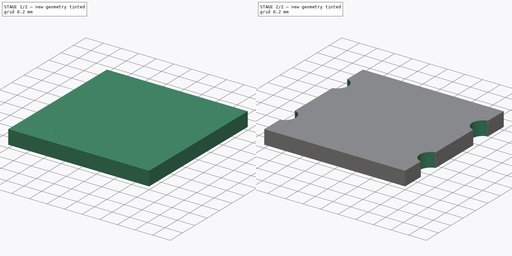
[diagram: build sequence overview — one tinted view per stage of 2, left to right]
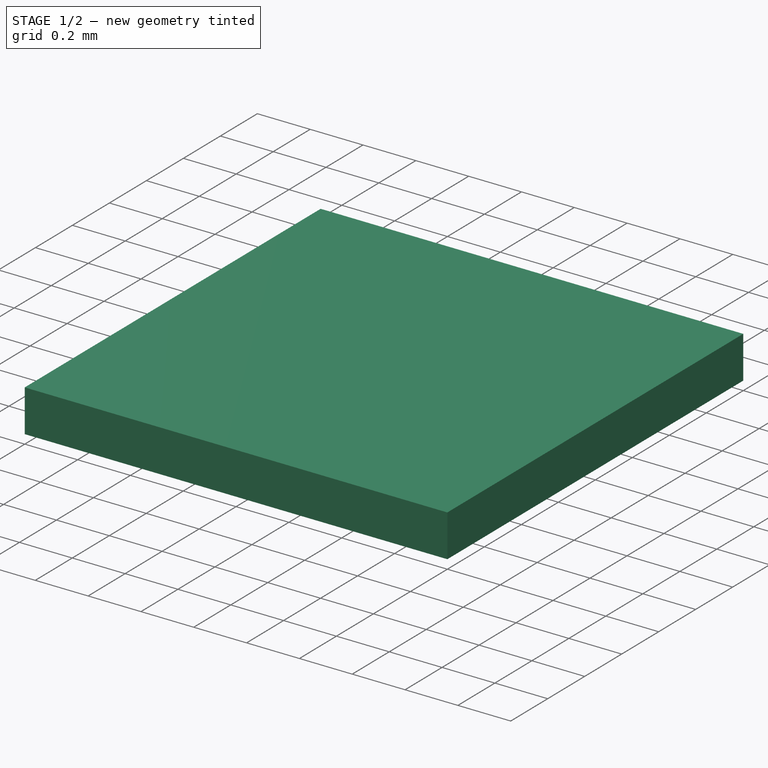
[diagram: stage 1 of 2 — iso view after this stage's code; geometry added in this stage tinted green]
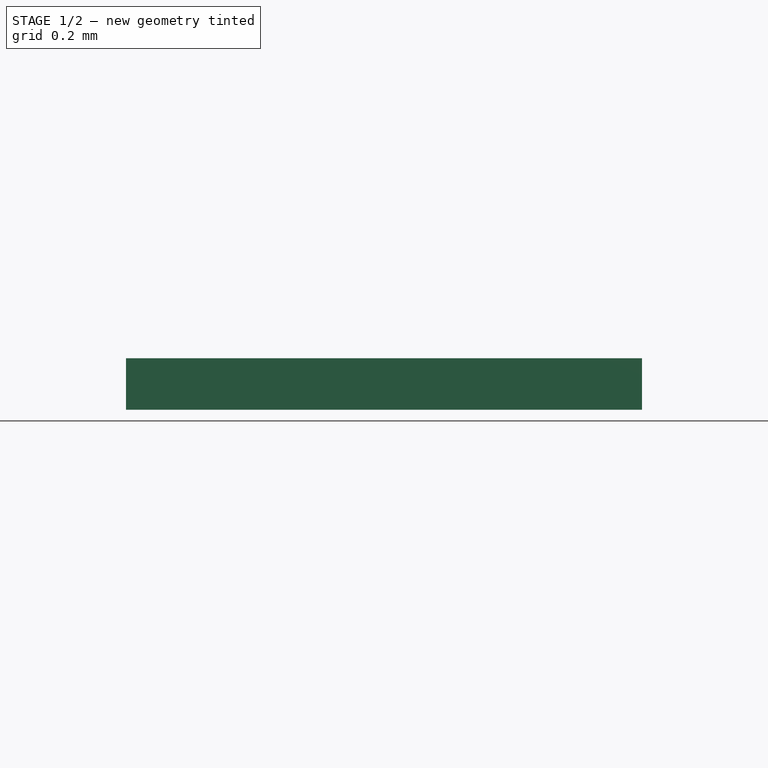
[diagram: stage 1 of 2 — front view after this stage's code; geometry added in this stage tinted green]
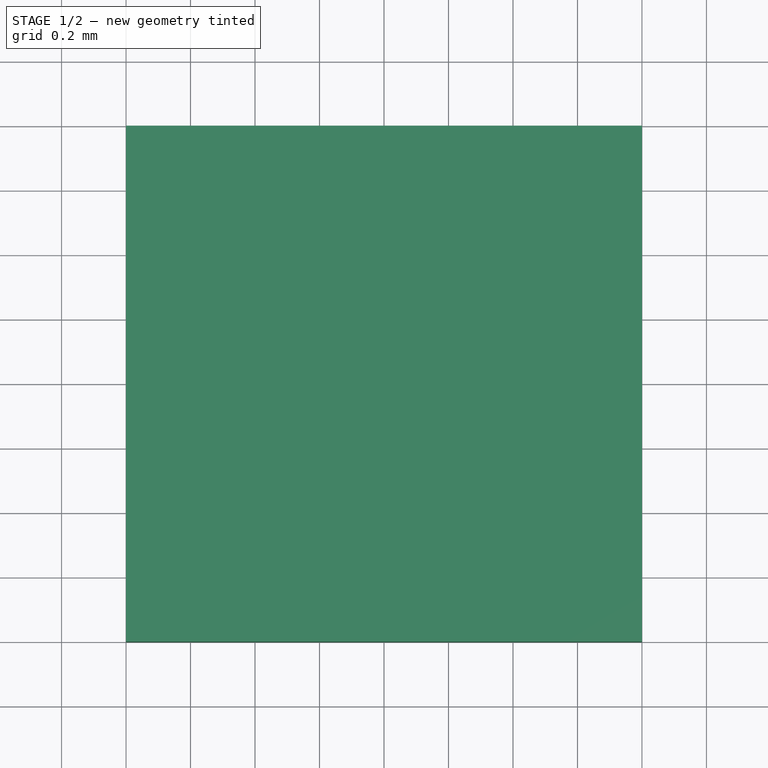
[diagram: stage 1 of 2 — top view after this stage's code; geometry added in this stage tinted green]
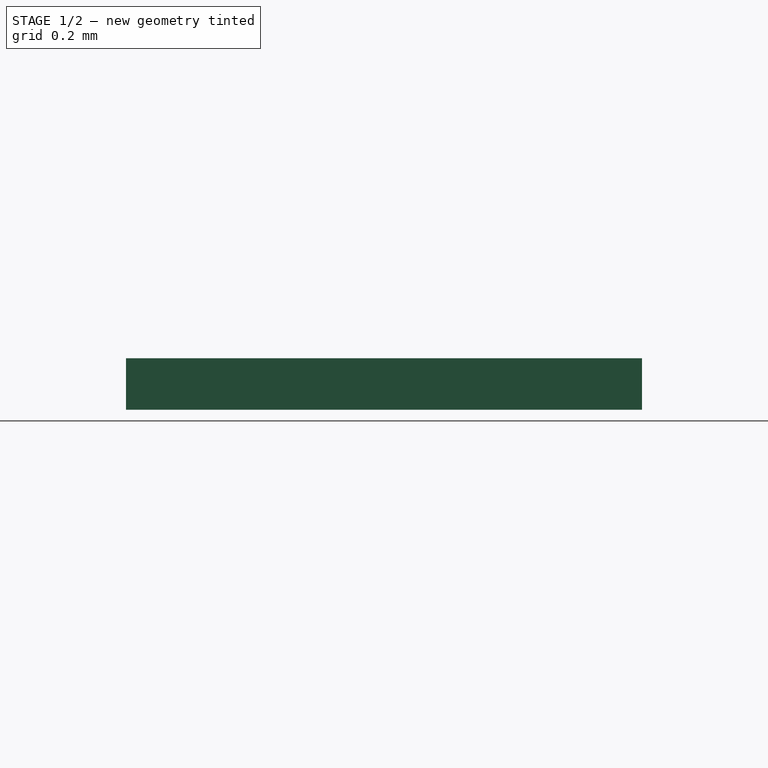
[diagram: stage 1 of 2 — right view after this stage's code; geometry added in this stage tinted green]
FCSTD DOCUMENT  (FreeCAD 0.17R12607 (Git))
Label: 1616 RGB LED Body
License: CreativeCommons Attribution-ShareAlike
LicenseURL: http://creativecommons.org/licenses/by-sa/4.0/
objects: Sketcher::SketchObject×2, PartDesign::Pad×1, PartDesign::Pocket×1, PartDesign::Body×1
note: 7 computed .brp shape members not serialized (recipe doc carries the construction recipe); baked Part::Feature solids carry a one-line shape summary decoded from their .brp

FEATURE [Sketcher::SketchObject] Sketch
  MapMode = 5
  Support = -> [XY_Plane]
  sketch-geometry (4):
    g0: LineSegment StartX=-0.8 StartY=0.8 StartZ=0 EndX=0.8 EndY=0.8 EndZ=0
    g1: LineSegment StartX=0.8 StartY=0.8 StartZ=0 EndX=0.8 EndY=-0.8 EndZ=0
    g2: LineSegment StartX=0.8 StartY=-0.8 StartZ=0 EndX=-0.8 EndY=-0.8 EndZ=0
    g3: LineSegment StartX=-0.8 StartY=-0.8 StartZ=0 EndX=-0.8 EndY=0.8 EndZ=0
  constraints (12):
    c: Coincident(g0,g1)
    c: Coincident(g1,g2)
    c: Coincident(g2,g3)
    c: Coincident(g3,g0)
    c: Horizontal(g0)
    c: Horizontal(g2)
    c: Vertical(g1)
    c: Vertical(g3)
    c: Symmetric(g0,g0,g-2)
    c: Symmetric(g0,g1,g-1)
    c: Equal(g0,g1)
    c: DistanceY(g1,g1) = 1.6
FEATURE [PartDesign::Pad] Pad
  Length = 0.16
  Length2 = 100
  Profile = -> Sketch
  Type = 0
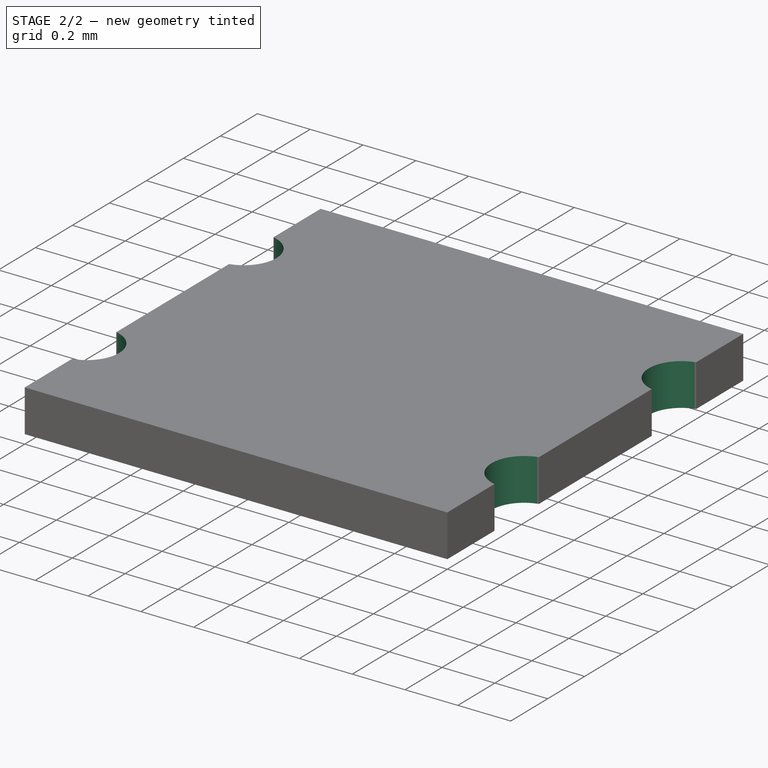
[diagram: stage 2 of 2 — iso view after this stage's code; geometry added in this stage tinted green]
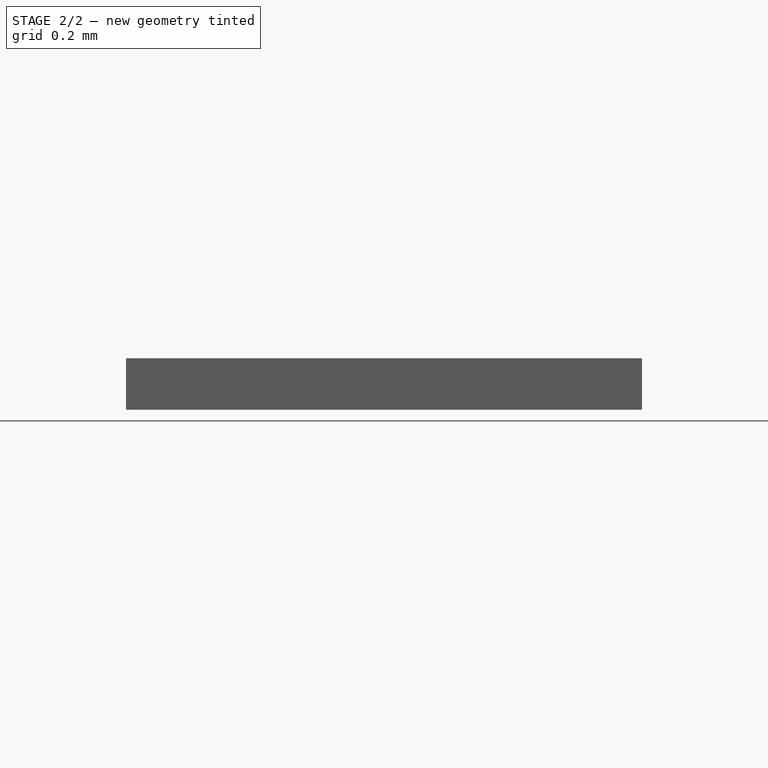
[diagram: stage 2 of 2 — front view after this stage's code; geometry added in this stage tinted green]
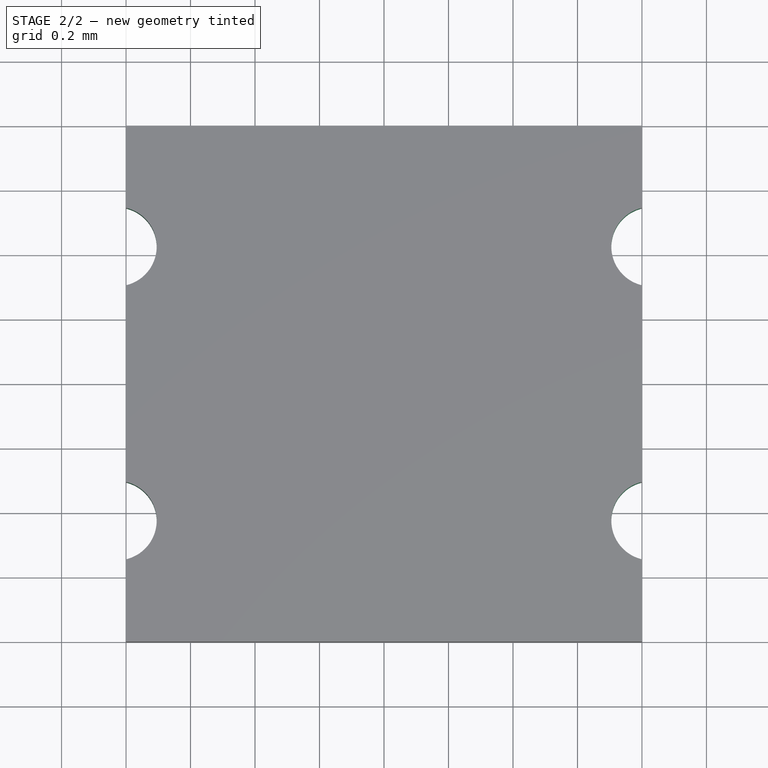
[diagram: stage 2 of 2 — top view after this stage's code; geometry added in this stage tinted green]
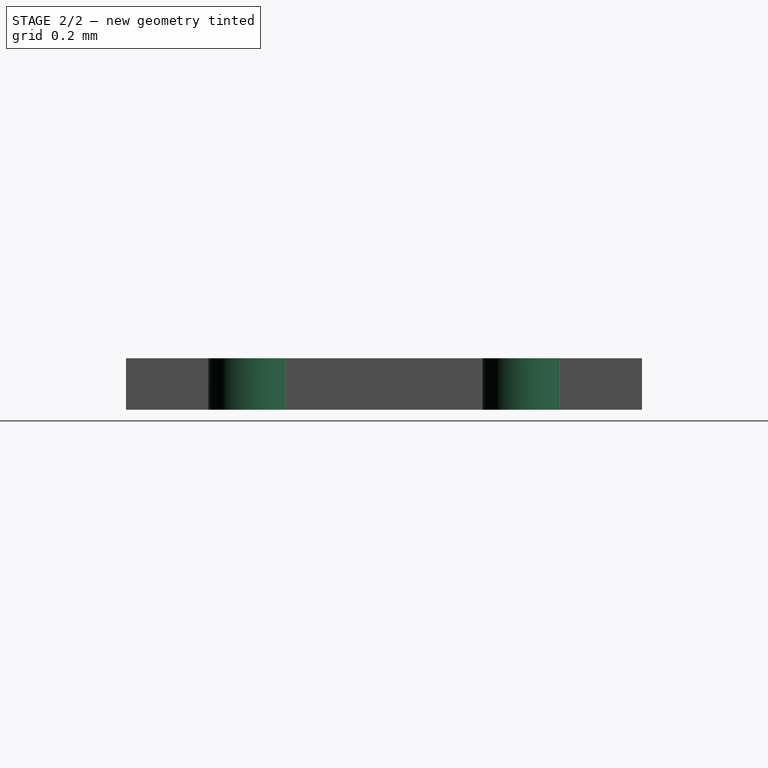
[diagram: stage 2 of 2 — right view after this stage's code; geometry added in this stage tinted green]
FEATURE [Sketcher::SketchObject] Sketch001
  ExternalGeometry = -> [Pad]
  MapMode = 5
  Placement = pos=(0,0,0.16) rot=(0,0,1;0rad)
  Support = -> [Pad]
  sketch-geometry (9):
    g0: ArcOfCircle CenterX=-0.828289 CenterY=0.425 CenterZ=0 NormalX=0 NormalY=0 NormalZ=1 AngleXU=0 Radius=0.123289 StartAngle=4.94391 EndAngle=7.62246
    g1: ArcOfCircle CenterX=0.828289 CenterY=0.425 CenterZ=0 NormalX=0 NormalY=0 NormalZ=1 AngleXU=0 Radius=0.123289 StartAngle=1.80231 EndAngle=4.48087
    g2: ArcOfCircle CenterX=-0.828289 CenterY=-0.425 CenterZ=0 NormalX=0 NormalY=0 NormalZ=1 AngleXU=0 Radius=0.123289 StartAngle=4.94391 EndAngle=7.62246
    g3: ArcOfCircle CenterX=0.828289 CenterY=-0.425 CenterZ=0 NormalX=0 NormalY=0 NormalZ=1 AngleXU=0 Radius=0.123289 StartAngle=1.80231 EndAngle=4.48087
    g4: LineSegment [constr] StartX=-0.828289 StartY=0.425 StartZ=0 EndX=-0.705 EndY=0.425 EndZ=0
    g5: LineSegment StartX=-0.8 StartY=0.545 StartZ=0 EndX=-0.8 EndY=0.305 EndZ=0
    g6: LineSegment StartX=0.8 StartY=0.545 StartZ=0 EndX=0.8 EndY=0.305 EndZ=0
    g7: LineSegment StartX=0.8 StartY=-0.305 StartZ=0 EndX=0.8 EndY=-0.545 EndZ=0
    g8: LineSegment StartX=-0.8 StartY=-0.305 StartZ=0 EndX=-0.8 EndY=-0.545 EndZ=0
  constraints (25):
    c: DistanceY(g-1,g0) = 0.425
    c: Coincident(g4,g0)
    c: PointOnObject(g4,g0)
    c: Horizontal(g4)
    c: Distance(g4,g-3) = 0.095
    c: PointOnObject(g0,g-3)
    c: PointOnObject(g0,g-3)
    c: Distance(g0,g0) = 0.24
    c: Coincident(g5,g0)
    c: Coincident(g5,g0)
    c: Coincident(g6,g1)
    c: Coincident(g6,g1)
    c: Coincident(g7,g3)
    c: Coincident(g7,g3)
    c: Coincident(g8,g2)
    c: Coincident(g8,g2)
    c: Symmetric(g0,g2,g-1)
    c: Symmetric(g2,g0,g-1)
    c: Equal(g0,g2)
    c: Symmetric(g1,g0,g-2)
    c: Symmetric(g1,g0,g-2)
    c: Equal(g0,g1)
    c: Symmetric(g2,g3,g-2)
    c: Symmetric(g3,g2,g-2)
    c: Equal(g2,g3)
FEATURE [PartDesign::Pocket] Pocket
  BaseFeature = -> Pad
  Length = 5
  Profile = -> Sketch001
  Type = 1
FEATURE [PartDesign::Body] Body
  Group = -> [Sketch,Pad,Sketch001,Pocket]
  Origin = -> Origin
  Tip = -> Pocket
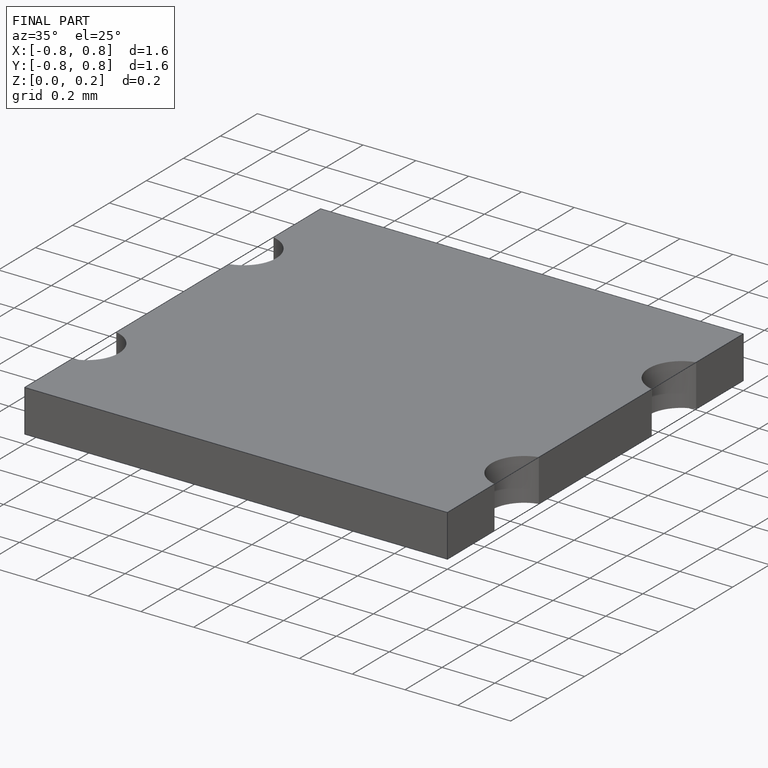
[diagram: finished part — iso view with bounding-box wireframe]
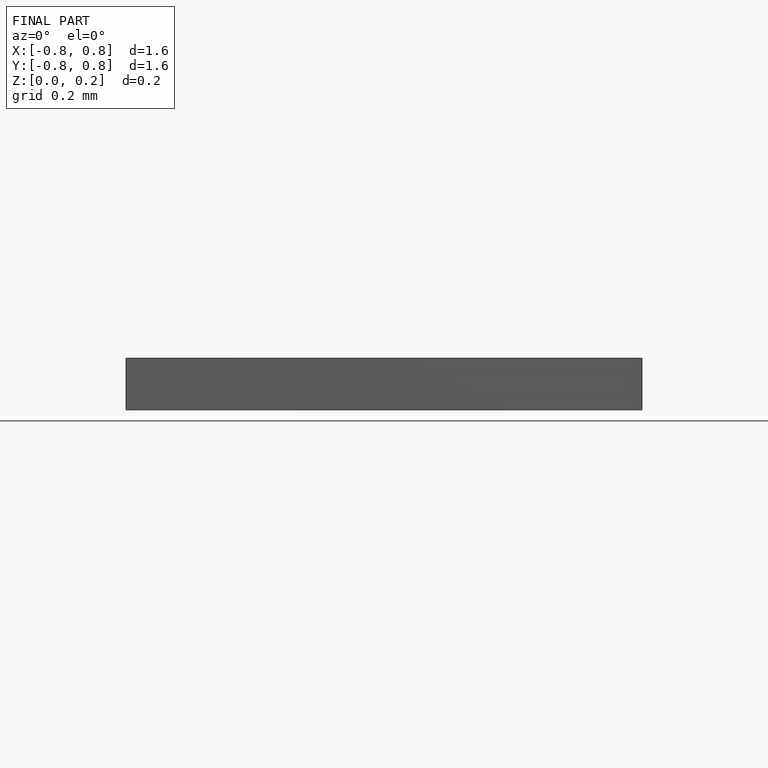
[diagram: finished part — front view with bounding-box wireframe]
